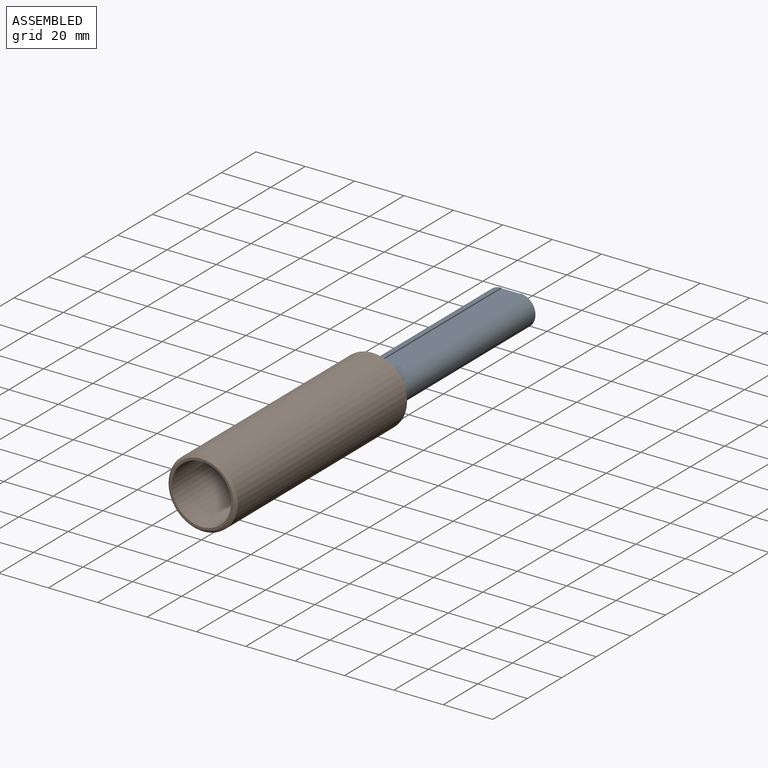
[diagram: assembled view]
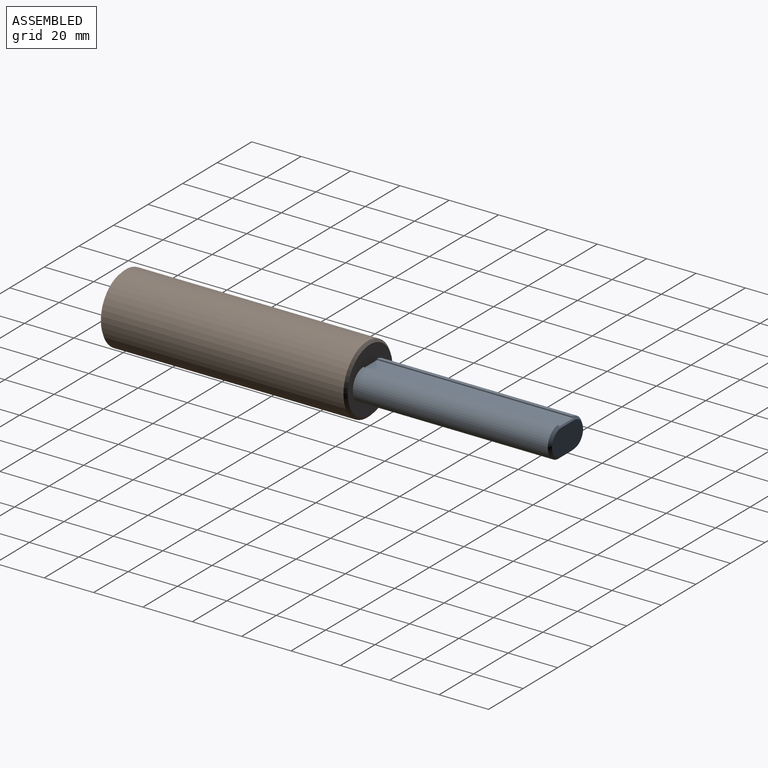
[diagram: assembled view, second angle]
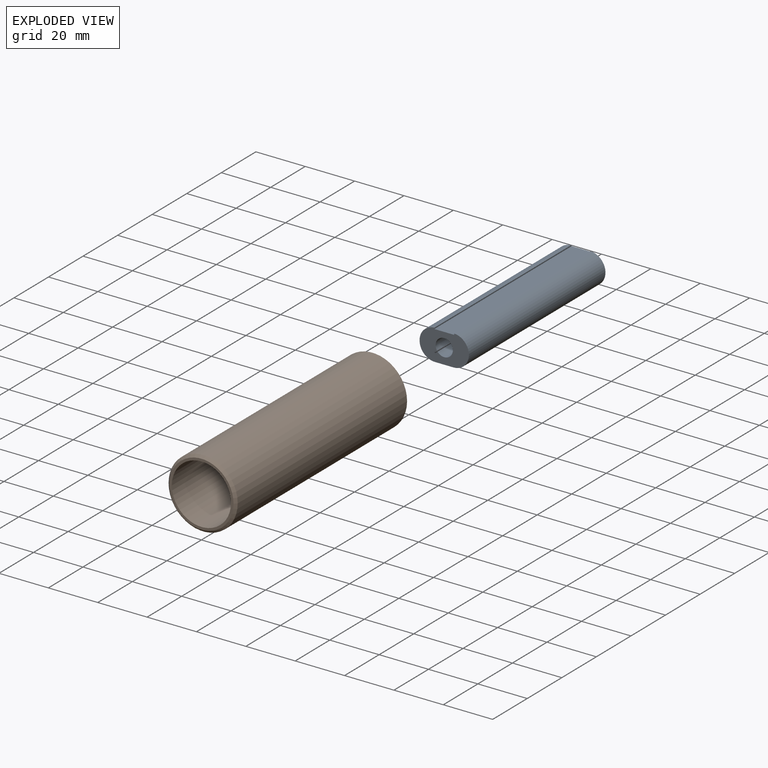
[diagram: exploded view]
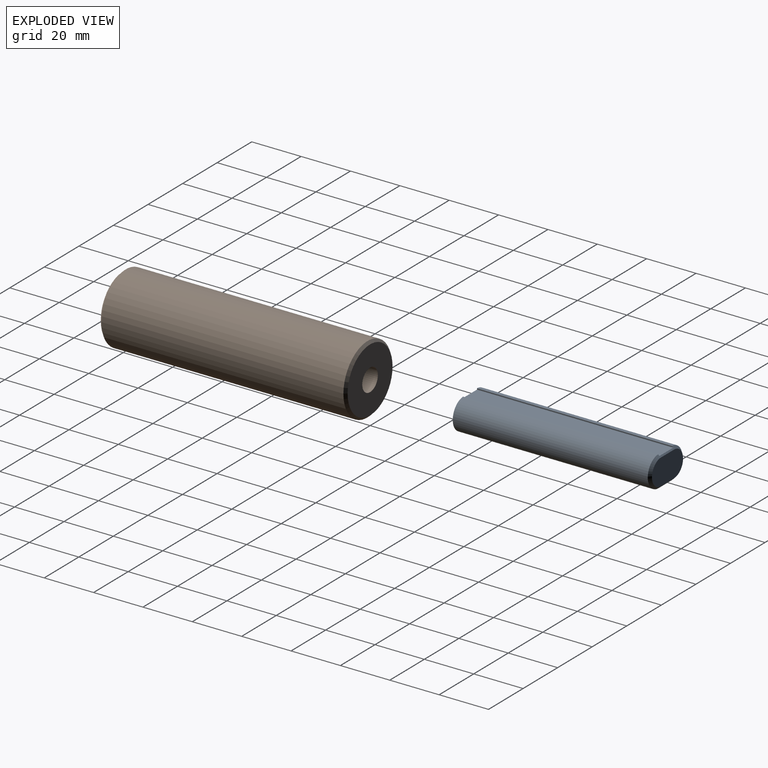
[diagram: exploded view, second angle]
ASSEMBLY  parts=2 mates=2
PART A: 14 faces, bbox 20x80x12.5 mm
  f0: cylinder r=6.25mm len=79mm, axis (0,-1,0), area 1531.4mm2, adj f1,f3,f4,f10
  f1: plane 20.01x12.51mm, normal (0,-1,0), area 174mm2, adj f0,f4,f5,f9,f10,f11,f13
  f2: plane 7.5x0.5mm, normal (0,0.71,0.71), area 5.3mm2, adj f3,f6,f7,f11
  f3: cone r=6.25mm half-angle=45deg, axis (0,-1,0), area 25.4mm2, adj f0,f2,f6,f8,f10,f11
  f4: plane 79x7.5mm, normal (0,0,-1), area 592.5mm2, adj f0,f1,f5,f8
  f5: cylinder r=6.25mm len=79mm, axis (0,-1,0), area 1531.4mm2, adj f1,f4,f7,f9
  f6: plane 18x10.5mm, normal (0,1,0), area 165.3mm2, adj f2,f3,f7,f8
  f7: cone r=6.25mm half-angle=45deg, axis (0,-1,0), area 25.4mm2, adj f2,f5,f6,f8,f9,f11
  f8: plane 7.5x1mm, normal (0,0.71,-0.71), area 10.6mm2, adj f3,f4,f6,f7
  f9: plane 79.5x0.5mm, normal (-1,0,0), area 39.2mm2, adj f1,f5,f7,f11
  f10: plane 79.5x0.51mm, normal (1,0,0), area 39.6mm2, adj f0,f1,f3,f11
  f11: plane 79.5x8mm, normal (0,0,1), area 636mm2, adj f1,f2,f3,f7,f9,f10
  f12: cone r=0mm half-angle=59deg, axis (0,-1,0), area 44.9mm2, adj f13
  f13: cylinder r=3.5mm len=23mm, axis (0,-1,0), area 505.8mm2, adj f1,f12
PART B: 8 faces, bbox 28x28x100 mm
  f0: plane 24x24mm, normal (0,0,-1), area 388.8mm2, adj f1,f4
  f1: cylinder r=4.5mm len=25mm, axis (0,0,-1), area 706.9mm2, adj f0,f3
  f2: cylinder r=14mm len=98mm, axis (0,0,-1), area 8620.5mm2, adj f6,f7
  f3: plane 26x26mm, normal (0,0,1), area 467.3mm2, adj f1,f7
  f4: cylinder r=12mm len=75mm, axis (0,0,1), area 5654.9mm2, adj f0,f5
  f5: plane 26x26mm, normal (0,0,-1), area 78.5mm2, adj f4,f6
  f6: cone r=14mm half-angle=45deg, axis (0,0,1), area 120mm2, adj f2,f5
  f7: cone r=13mm half-angle=45deg, axis (0,0,-1), area 120mm2, adj f2,f3
PLACE A at identity fixed
PLACE B rot(axis=(-1,0,0),90deg) t=(0,-25,0)mm
MATE planar B.f1 <-> A.f1  axis (0,1,0) through (0,0,0)mm
MATE cylindrical B.f2 <-> A.f12  axis (0,-1,0) through (0,-1,0)mm
